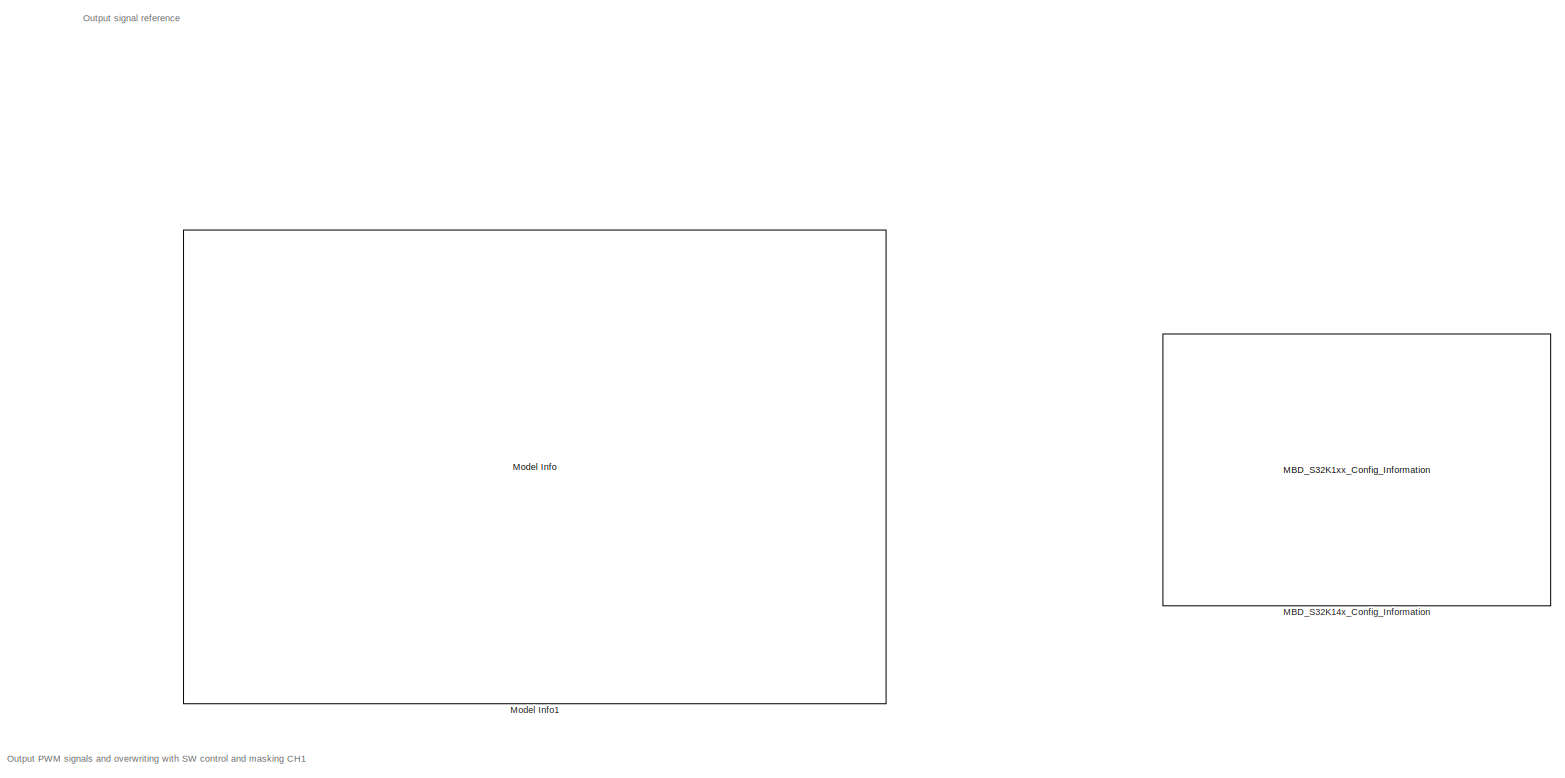
[diagram: root canvas - part 1/2, full width, top band]
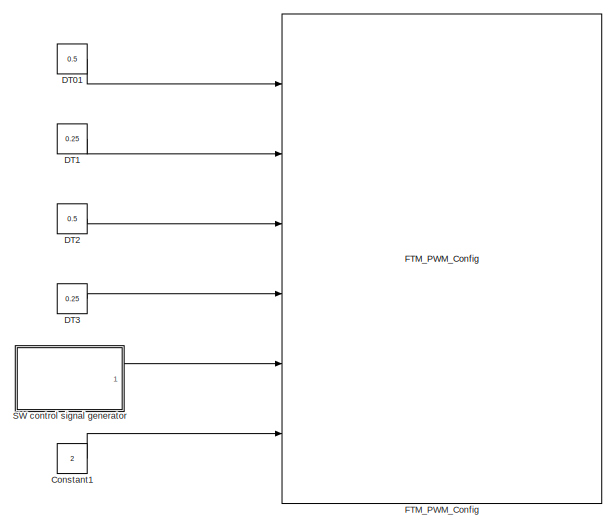
[diagram: root canvas - part 2/2, bottom center region]
MODEL ftm_sw_control_s32k14x
KIND model
CONFIG InitFcn = mbd_s32k_consistency_checks(bdroot(gcs));
BLOCK [Constant] Constant1
  OutDataTypeStr = uint8
  SID = 75
  Value = 2
BLOCK [Constant] DT01
  OutDataTypeStr = single
  SID = 2
  Value = 0.5
BLOCK [Constant] DT1
  OutDataTypeStr = single
  SID = 76
  Value = 0.25
BLOCK [Constant] DT2
  OutDataTypeStr = single
  SID = 77
  Value = 0.5
BLOCK [Constant] DT3
  OutDataTypeStr = single
  SID = 78
  Value = 0.25
BLOCK [Reference] FTM_PWM_Config  REF=mbd_s32k1xx_ec_toolbox/Motor Control Blocks/FTM Blocks/FTM_PWM_Config
  Ports = [6]
  Priority = 1
  SID = 54
  SourceBlock = mbd_s32k1xx_ec_toolbox/Motor Control Blocks/FTM Blocks/FTM_PWM_Config
  SourceType = FTM_s32k_pwm_config_block
  chTrigger0 = on
  chTrigger1 = on
  chTrigger2 = off
  chTrigger3 = off
  chTrigger4 = off
  chTrigger5 = off
  chTrigger6 = off
  chTrigger7 = off
  chan0En = on
  chan0Type = Independent
  chan2En = on
  chan2Type = Independent
  chan4En = off
  chan4Type = Independent
  chan6En = off
  chan6Type = Independent
  chnMatch0 = off
  chnMatch1 = off
  chnMatch2 = off
  chnMatch3 = off
  chnMatch4 = off
  chnMatch5 = off
  chnMatch6 = off
  chnMatch7 = off
  deadtimeNs = 0
  deadtimePrescaler = Divide by 1
  deadtimeTicks = 0
  deadtimeUnits = Nanoseconds
  dutyCycleCh0 = 0.5
  dutyCycleCh1 = 0.5
  dutyCycleCh2 = 0.25
  dutyCycleCh3 = 0.25
  dutyCycleCh4 = 0.25
  dutyCycleCh5 = 0.25
  dutyCycleCh6 = 0.25
  dutyCycleCh7 = 0.25
  dutyCycleSim = off
  fault_disen_0 = off
  fault_disen_1 = off
  fault_disen_2 = off
  fault_disen_3 = off
  fault_filter_0 = off
  fault_filter_1 = off
  fault_filter_2 = off
  fault_filter_3 = off
  fault_pin_0 = None
  fault_pin_1 = None
  fault_pin_2 = None
  fault_pin_3 = None
  fault_polarity_0 = Active High
  fault_polarity_1 = Active high
  fault_polarity_2 = Active high
  fault_polarity_3 = Active high
  ftmMode = Edge-Aligned PWM
  ftmModule = 3
  ftmPeriod = 8000
  ftmPrescaler = Divide by 1
  ftmPwmUnits = Hz
  ftmSourceClock = 80 MHz
  initTrigger = off
  mcuTargetUpdate = on
  outFrequency = 10000
  outputComplem0 = Main duplicated
  outputComplem2 = Main duplicated
  outputComplem4 = Main duplicated
  outputComplem6 = Main duplicated
  outputLevel0 = High
  outputLevel1 = High
  outputLevel2 = Low
  outputLevel3 = Low
  outputLevel4 = Low
  outputLevel5 = Low
  outputLevel6 = Low
  outputLevel7 = Low
  pinFtmCh0 = PTB8: [FTM3_CH0 | FTM Channel]
  pinFtmCh1 = PTB9: [FTM3_CH1 | FTM Channel]
  pinFtmCh2 = PTB10: [FTM3_CH2 | FTM Channel]
  pinFtmCh3 = PTB11: [FTM3_CH3 | FTM Channel]
  pinFtmCh4 = PTC10: [FTM3_CH4 | FTM Channel]
  pinFtmCh5 = None
  pinFtmCh6 = PTC12: [FTM3_CH6 | FTM Channel]
  pinFtmCh7 = None
  pinPolCh0 = Active High
  pinPolCh1 = Active Low
  pinPolCh2 = Active Low
  pinPolCh3 = Active High
  pinPolCh4 = Active Low
  pinPolCh5 = Active Low
  pinPolCh6 = Active Low
  pinPolCh7 = Active Low
  pwmFaultClearing = Fault control disabled
  pwmFaultFilterValue = 0
  pwmFaultInterrupt = off
  pwmFaultPinState = Safe Value
  pwmFaultPriority = 15
  pwmFaultProtection = off
  pwmSyncAutoClear = on
  pwmSyncCounterInitial = System Clock
  pwmSyncHwRouting = TRGMUX_FTM7
  pwmSyncInvert = System Clock
  pwmSyncMaxLoad = on
  pwmSyncMinLoad = on
  pwmSyncOutControl = System Clock
  pwmSyncOutMask = System Clock
  pwmSyncPoints = Wait Loading Points
  pwmSyncTrg = Software trigger
  pwmSyncTrg0 = off
  pwmSyncTrg1 = off
  pwmSyncTrg2 = off
  reloadEnable = off
  reloadFrequency = 0
  reloadHCR = 0
  reloadHalfCycle = off
  reloadPriority = 15
  showAdvOpt = on
  startAfterInit = on
  swcontrol_enable = on
BLOCK [Reference] MBD_S32K14x_Config_Information  REF=mbd_s32k1xx_ec_toolbox/MBD_S32K1xx_Config_Information
  ADC_PcrCheckEnDis = on
  AMMCLIB_PcrCheckEnDis = on
  CMP_PcrCheckEnDis = on
  CSEc_PcrCheckEnDis = on
  ConfigParams_PcrCheckEnDis = on
  FM_PcrCheckEnDis = on
  FTM_Dual_Edge_Inputs_PcrCheckEnDis = on
  FTM_Hall_Sensor_Inputs_PcrCheckEnDis = on
  FTM_Input_Edge_Inputs_PcrCheckEnDis = on
  FTM_PWM_PcrCheckEnDis = on
  FTM_Quadrature_Inputs_PcrCheckEnDis = on
  FlexCAN_PcrCheckEnDis = on
  FlexIO_PcrCheckEnDis = on
  GPIO_InputPcrCheckEnDis = on
  GPIO_OutputPcrCheckEnDis = on
  LIN_PcrCheckEnDis = on
  LPI2C_PcrCheckEnDis = on
  LPSPI_PcrCheckEnDis = on
  LPTMR_PcrCheckEnDis = on
  LPUART_PcrCheckEnDis = on
  ModelRef_PcrCheckEnDis = on
  PDB0_PcrCheckEnDis = on
  PIT_PcrCheckEnDis = on
  Ports = []
  Profile_PcrCheckEnDis = on
  RTC_PcrCheckEnDis = on
  SBC_PcrCheckEnDis = on
  SID = 57
  SourceBlock = mbd_s32k1xx_ec_toolbox/MBD_S32K1xx_Config_Information
  SourceType = MBDTBX_EC_S32K
  WDOG_PcrCheckEnDis = on
  config_params = []
  disp_str = Target : S32K144-64KB_SRAM\nPackage : 100-pin\nSystem clock : 80 MHz\nXTAL clock : External 8 MHz\nCompiler : IAR\nTarget Type : FLASH\nDownload Code after build : off\nStep Tick Interrupt Priority : 15
  ds_import_enable = on
  eDMA_PcrCheckEnDis = on
  gcc_target_assemble_opts = -mcpu=cortex-m4 -mthumb -mfloat-abi=hard -mfpu=fpv4-sp-d16 -g
  gcc_target_compile_opts = -mcpu=cortex-m4 -mthumb -mfloat-abi=hard -mfpu=fpv4-sp-d16 -O1 -g -gstrict-dwarf
  gcc_target_default_lcf = on
  gcc_target_link_opts = -mcpu=cortex-m4 -mthumb -mfloat-abi=hard -mfpu=fpv4-sp-d16
  gcc_target_user_lcf = S32K144_48_flash.ld
  ghs_target_assemble_opts = -cpu=cortexm4f -fpu=vfpv4_d16
  ghs_target_compile_opts = -cpu=cortexm4f -thumb -DARM_MATH_CM4 -fpu=vfpv4_d16 -fsingle -Ogeneral -Wundef -Wimplicit-int -Wshadow -Wtrigraphs --no_commons --gnu_asm -gnu99 -gdwarf-2 -G
  ghs_target_default_lcf = on
  ghs_target_link_opts = -cpu=cortexm4f -thumb -fpu=vfpv4_d16
  ghs_target_user_lcf = S32K144_48_flash.ld
  iar_target_assemble_opts = --cpu Cortex-M4F --thumb --fpu VFPv4_sp
  iar_target_compile_opts = --cpu=Cortex-M4F --thumb --fpu=VFPv4_sp -Ol -e --debug --dlib_config normal
  iar_target_default_lcf = on
  iar_target_link_opts = --no_exceptions --vfe --inline
  iar_target_user_lcf = S32K144_48_flash.icf
  mbdt_ver = 0
  mcu_steptick_prio = 15
  mcu_steptick_timer = LPIT Channel 0
  mcu_system_clock_freq = 80
  mcu_target_name = S32K144
  mcu_target_package = 64-LQFP
  mcu_target_sram_size = 48KB
  mcu_xtal_freq = External 8
  pil_download_enable = off
  pil_download_rate = 57600
  pil_opensda_drive = Custom
  pil_opensda_drive_custom = D
  pil_uart_instance = 0
  pil_uart_rx = PTA2: [LPUART0_RX | Receive]
  pil_uart_tx = PTA3: [LPUART0_TX | Transmit]
  rbl_com_port = Custom
  rbl_com_port_custom = COM1
  rbl_download_enable = on
  rbl_download_interface = OpenSDA
  rbl_restart_request = off
  rbl_start_delay = 5000
  target_compiler = GCC
  target_memory = FLASH
BLOCK [Reference] Model Info1  REF=simulink/Model-Wide\nUtilities/Model Info
  DisplayStringWithTags = Model Name: %<ModelName>\n\nDescription: %<Description>
  Frame = off
  HorizontalTextAlignment = Left
  LeftAlignmentValue = 0.02
  MaskDisplayString = Model Name: ftm_sw_control_s32k14x\\n\\nDescription: This example shows how to use FTM SW control and OUTMASK to generate PWM signals for S32K144.\\n\\nIn this example we use the following tranzitions for SW Control to overwrite the HW control for PWM:\\nCH0 : HIGH -> LOW ---> CH2 : HIGH -> LOW\\n\\nAt every time period (controlled by the fixed discrete step), the input signal for the SW control c...<+600ch>
  Ports = []
  SID = 53
  SourceBlock = simulink/Model-Wide\nUtilities/Model Info
  SourceProductBaseCode = SL
  SourceProductName = Simulink
  SourceType = CMBlock
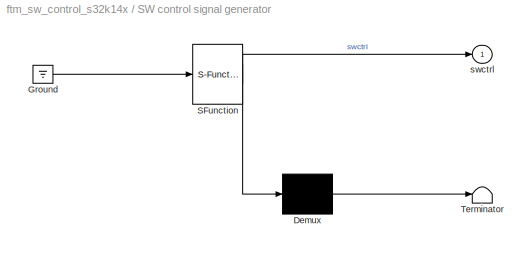
BLOCK [SubSystem] SW control signal generator
  ErrorFcn = Stateflow.Translate.translate
  PermitHierarchicalResolution = ExplicitOnly
  Ports = [0, 1]
  RequestExecContextInheritance = off
  SFBlockType = Chart
  SID = 88
  TreatAsAtomicUnit = on
  Variant = off
BLOCK [Demux] SW control signal generator/ Demux 
  Outputs = 1
  Ports = [1, 1]
  SID = 88::52
BLOCK [Ground] SW control signal generator/ Ground 
  SID = 88::54
BLOCK [S-Function] SW control signal generator/ SFunction 
  EnableBusSupport = on
  FunctionName = sf_sfun
  PortCounts = [1 2]
  Ports = [1, 2]
  SFcnIsStateOwnerBlock = off
  SFunctionDeploymentMode = off
  SID = 88::51
  Tag = Stateflow S-Function ftm_sw_control_s32k14x 2
BLOCK [Terminator] SW control signal generator/ Terminator 
  SID = 88::53
BLOCK [Outport] SW control signal generator/swctrl
  IconDisplay = Port number
  SID = 88::30
ANNOTATION (root): \n \n Output signal reference \n
ANNOTATION (root): Output PWM signals and overwriting with SW control and masking CH1
LINE Constant1:1 -> FTM_PWM_Config:6
LINE DT01:1 -> FTM_PWM_Config:1
LINE DT1:1 -> FTM_PWM_Config:2
LINE DT2:1 -> FTM_PWM_Config:3
LINE DT3:1 -> FTM_PWM_Config:4
LINE SW control signal generator/ Demux :1 -> SW control signal generator/ Terminator :1
LINE SW control signal generator/ Ground :1 -> SW control signal generator/ SFunction :1
LINE SW control signal generator/ SFunction :1 -> SW control signal generator/ Demux :1
LINE SW control signal generator/ SFunction :2 -> SW control signal generator/swctrl:1
LINE SW control signal generator:1 -> FTM_PWM_Config:5
CHART SW control signal generator states=4 transitions=5
  STATE_LABEL 'A\\ndu:\\nswctrl = 257;\\ncntr=cntr+1;'
  STATE_LABEL 'A1\\ndu:\\nswctrl = 1;\\ncntr=cntr+1;'
  STATE_LABEL 'A2\\ndu:\\nswctrl = 1028;\\ncntr=cntr+1;'
  STATE_LABEL 'A3\\ndu:\\nswctrl = 4;\\ncntr=cntr+1;'
